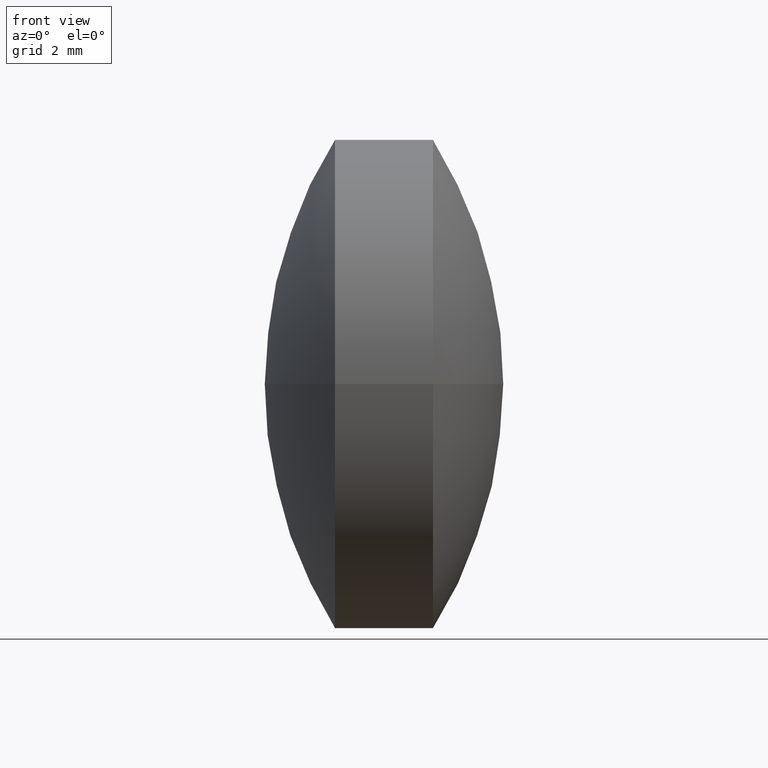
[diagram: clean part render]
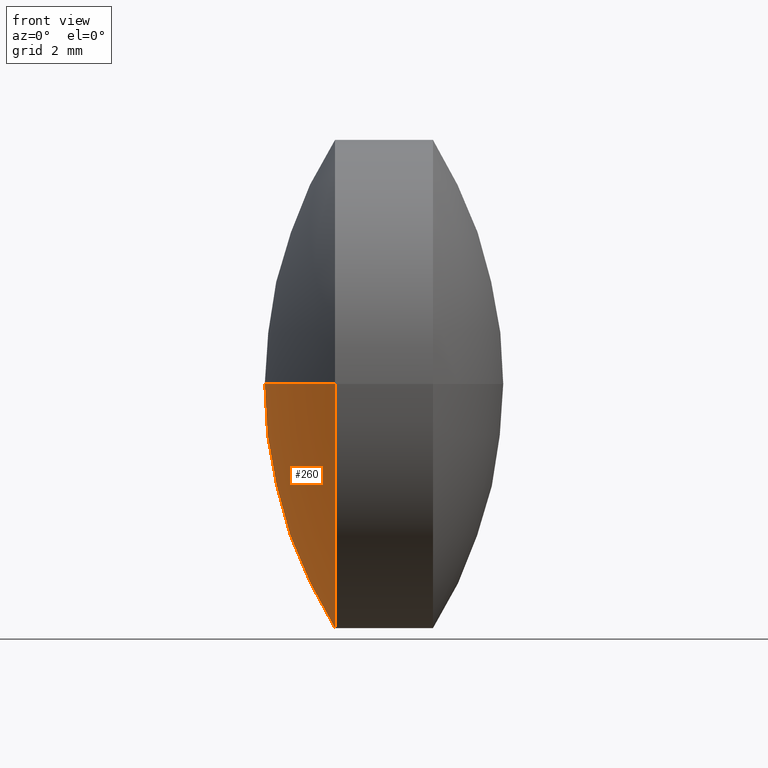
[diagram: same view with one face highlighted and labeled with its STEP entity id]
A machine part, front view. The second image highlights one B-rep face of the part: STEP entity #260.
In plain terms, the highlighted spherical surface has radius 9.4283 mm.
Its self-contained STEP definition (entity closure, byte-faithful):
#1 = ORIENTED_EDGE ( 'NONE', *, *, #65, .T. ) ;
#7 = FACE_OUTER_BOUND ( 'NONE', #185, .T. ) ;
#18 = CARTESIAN_POINT ( 'NONE',  ( 41.03196036013073900, 19.14020197763178600, 0.0000000000000000000 ) ) ;
#42 = AXIS2_PLACEMENT_3D ( 'NONE', #77, #200, #246 ) ;
#52 = EDGE_CURVE ( 'NONE', #117, #84, #102, .T. ) ;
#53 = ORIENTED_EDGE ( 'NONE', *, *, #52, .F. ) ;
#57 = CARTESIAN_POINT ( 'NONE',  ( 33.03865896640255800, 14.14020197763176900, -6.123233995736773200E-016 ) ) ;
#65 = EDGE_CURVE ( 'NONE', #117, #143, #159, .T. ) ;
#76 = DIRECTION ( 'NONE',  ( -1.822678674337698300E-031, 1.224646799147353200E-016, -1.000000000000000000 ) ) ;
#77 = CARTESIAN_POINT ( 'NONE',  ( 41.03196036013073900, 19.14020197763178600, 0.0000000000000000000 ) ) ;
#84 = VERTEX_POINT ( 'NONE', #104 ) ;
#87 = AXIS2_PLACEMENT_3D ( 'NONE', #218, #76, #151 ) ;
#90 = AXIS2_PLACEMENT_3D ( 'NONE', #241, #172, #261 ) ;
#102 = CIRCLE ( 'NONE', #236, 9.428301393728189000 ) ;
#104 = CARTESIAN_POINT ( 'NONE',  ( 31.60365896640254800, 19.14020197763177200, 0.0000000000000000000 ) ) ;
#108 = CARTESIAN_POINT ( 'NONE',  ( 33.03865896640254400, 24.14020197763178300, 0.0000000000000000000 ) ) ;
#117 = VERTEX_POINT ( 'NONE', #108 ) ;
#121 = EDGE_CURVE ( 'NONE', #143, #84, #235, .T. ) ;
#143 = VERTEX_POINT ( 'NONE', #57 ) ;
#151 = DIRECTION ( 'NONE',  ( 0.0000000000000000000, 1.000000000000000000, 1.224646799147353200E-016 ) ) ;
#159 = CIRCLE ( 'NONE', #90, 5.000000000000006200 ) ;
#172 = DIRECTION ( 'NONE',  ( -1.000000000000000000, -1.488330084728689300E-015, -0.0000000000000000000 ) ) ;
#185 = EDGE_LOOP ( 'NONE', ( #1, #208, #53 ) ) ;
#200 = DIRECTION ( 'NONE',  ( -0.0000000000000000000, 0.0000000000000000000, -1.000000000000000000 ) ) ;
#208 = ORIENTED_EDGE ( 'NONE', *, *, #121, .T. ) ;
#210 = SPHERICAL_SURFACE ( 'NONE', #42, 9.428301393728192500 ) ;
#215 = DIRECTION ( 'NONE',  ( -0.0000000000000000000, 0.0000000000000000000, 1.000000000000000000 ) ) ;
#218 = CARTESIAN_POINT ( 'NONE',  ( 41.03196036013073900, 19.14020197763178600, 0.0000000000000000000 ) ) ;
#235 = CIRCLE ( 'NONE', #87, 9.428301393728192500 ) ;
#236 = AXIS2_PLACEMENT_3D ( 'NONE', #18, #215, #238 ) ;
#238 = DIRECTION ( 'NONE',  ( 1.000000000000000000, 0.0000000000000000000, 0.0000000000000000000 ) ) ;
#241 = CARTESIAN_POINT ( 'NONE',  ( 33.03865896640255100, 19.14020197763177600, 0.0000000000000000000 ) ) ;
#246 = DIRECTION ( 'NONE',  ( -1.471928741803492900E-015, 1.000000000000000000, 0.0000000000000000000 ) ) ;
#260 = ADVANCED_FACE ( 'NONE', ( #7 ), #210, .T. ) ;
#261 = DIRECTION ( 'NONE',  ( 1.387778780781443900E-015, -1.000000000000000000, 0.0000000000000000000 ) ) ;